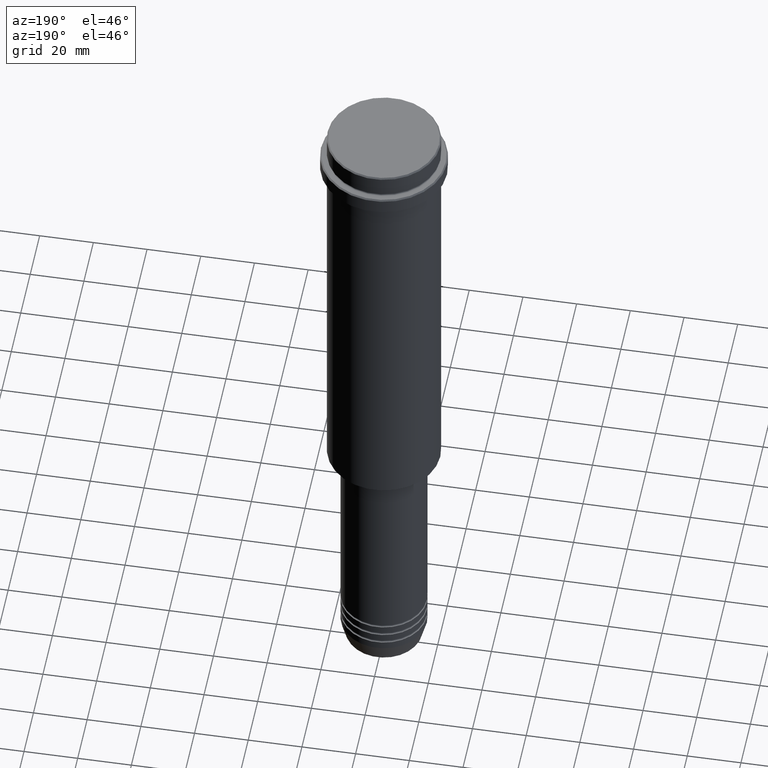
[diagram: clean part render]
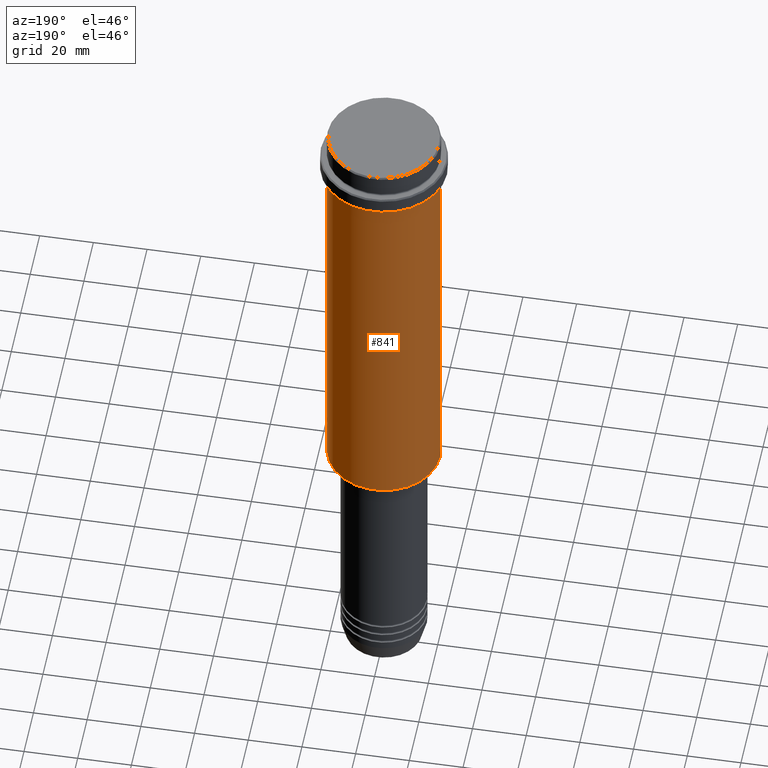
[diagram: same view with one face highlighted and labeled with its STEP entity id]
A machine part, auxiliary view. The second image highlights one B-rep face of the part: STEP entity #841.
In plain terms, the highlighted cylindrical surface (partial cylindrical patch) has radius 21 mm, axis along (-0, -0, 1).
Its self-contained STEP definition (entity closure, byte-faithful):
#3 = VERTEX_POINT ( 'NONE', #493 ) ;
#76 = ORIENTED_EDGE ( 'NONE', *, *, #1362, .T. ) ;
#79 = CARTESIAN_POINT ( 'NONE',  ( 20.99999999999999645, 0.000000000000000000, 0.000000000000000000 ) ) ;
#86 = DIRECTION ( 'NONE',  ( -0.000000000000000000, -0.000000000000000000, 1.000000000000000000 ) ) ;
#135 = VECTOR ( 'NONE', #86, 1000.000000000000000 ) ;
#139 = LINE ( 'NONE', #79, #1067 ) ;
#181 = CARTESIAN_POINT ( 'NONE',  ( 20.99999999999999645, 0.000000000000000000, -16.00000000000000355 ) ) ;
#212 = CARTESIAN_POINT ( 'NONE',  ( 0.000000000000000000, 0.000000000000000000, 0.000000000000000000 ) ) ;
#213 = AXIS2_PLACEMENT_3D ( 'NONE', #913, #626, #681 ) ;
#313 = VERTEX_POINT ( 'NONE', #181 ) ;
#323 = DIRECTION ( 'NONE',  ( -0.000000000000000000, -0.000000000000000000, 1.000000000000000000 ) ) ;
#349 = CARTESIAN_POINT ( 'NONE',  ( 0.000000000000000000, 0.000000000000000000, -164.5000000000000284 ) ) ;
#368 = EDGE_CURVE ( 'NONE', #1263, #788, #1055, .T. ) ;
#439 = ORIENTED_EDGE ( 'NONE', *, *, #368, .T. ) ;
#466 = CARTESIAN_POINT ( 'NONE',  ( -20.99999999999999645, 2.571758278209441267E-15, -164.5000000000000284 ) ) ;
#493 = CARTESIAN_POINT ( 'NONE',  ( 20.99999999999999645, 0.000000000000000000, -164.5000000000000284 ) ) ;
#513 = CARTESIAN_POINT ( 'NONE',  ( -20.99999999999999645, 2.571758278209441267E-15, 0.000000000000000000 ) ) ;
#524 = DIRECTION ( 'NONE',  ( -0.000000000000000000, -0.000000000000000000, 1.000000000000000000 ) ) ;
#559 = DIRECTION ( 'NONE',  ( -1.000000000000000000, 0.000000000000000000, 0.000000000000000000 ) ) ;
#624 = CIRCLE ( 'NONE', #1409, 20.99999999999999645 ) ;
#626 = DIRECTION ( 'NONE',  ( -0.000000000000000000, -0.000000000000000000, 1.000000000000000000 ) ) ;
#662 = CIRCLE ( 'NONE', #213, 20.99999999999999645 ) ;
#681 = DIRECTION ( 'NONE',  ( 1.000000000000000000, 0.000000000000000000, 0.000000000000000000 ) ) ;
#684 = ORIENTED_EDGE ( 'NONE', *, *, #1377, .F. ) ;
#788 = VERTEX_POINT ( 'NONE', #905 ) ;
#794 = EDGE_CURVE ( 'NONE', #313, #788, #662, .T. ) ;
#841 = ADVANCED_FACE ( 'NONE', ( #1052 ), #966, .T. ) ;
#889 = AXIS2_PLACEMENT_3D ( 'NONE', #212, #323, #1180 ) ;
#905 = CARTESIAN_POINT ( 'NONE',  ( -20.99999999999999645, 2.571758278209441267E-15, -16.00000000000000355 ) ) ;
#913 = CARTESIAN_POINT ( 'NONE',  ( 0.000000000000000000, 0.000000000000000000, -16.00000000000000355 ) ) ;
#964 = EDGE_LOOP ( 'NONE', ( #76, #439, #1234, #684 ) ) ;
#966 = CYLINDRICAL_SURFACE ( 'NONE', #889, 20.99999999999999645 ) ;
#1052 = FACE_OUTER_BOUND ( 'NONE', #964, .T. ) ;
#1055 = LINE ( 'NONE', #513, #135 ) ;
#1067 = VECTOR ( 'NONE', #524, 1000.000000000000000 ) ;
#1180 = DIRECTION ( 'NONE',  ( 1.000000000000000000, 0.000000000000000000, 0.000000000000000000 ) ) ;
#1204 = DIRECTION ( 'NONE',  ( -0.000000000000000000, -0.000000000000000000, 1.000000000000000000 ) ) ;
#1234 = ORIENTED_EDGE ( 'NONE', *, *, #794, .F. ) ;
#1263 = VERTEX_POINT ( 'NONE', #466 ) ;
#1362 = EDGE_CURVE ( 'NONE', #3, #1263, #624, .T. ) ;
#1377 = EDGE_CURVE ( 'NONE', #3, #313, #139, .T. ) ;
#1409 = AXIS2_PLACEMENT_3D ( 'NONE', #349, #1204, #559 ) ;